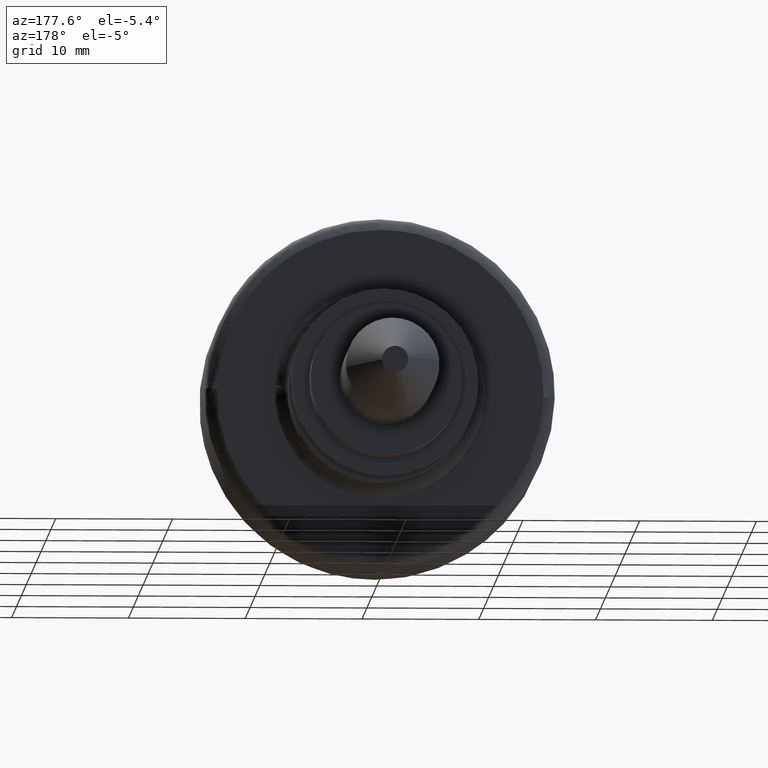
[diagram: clean part render]
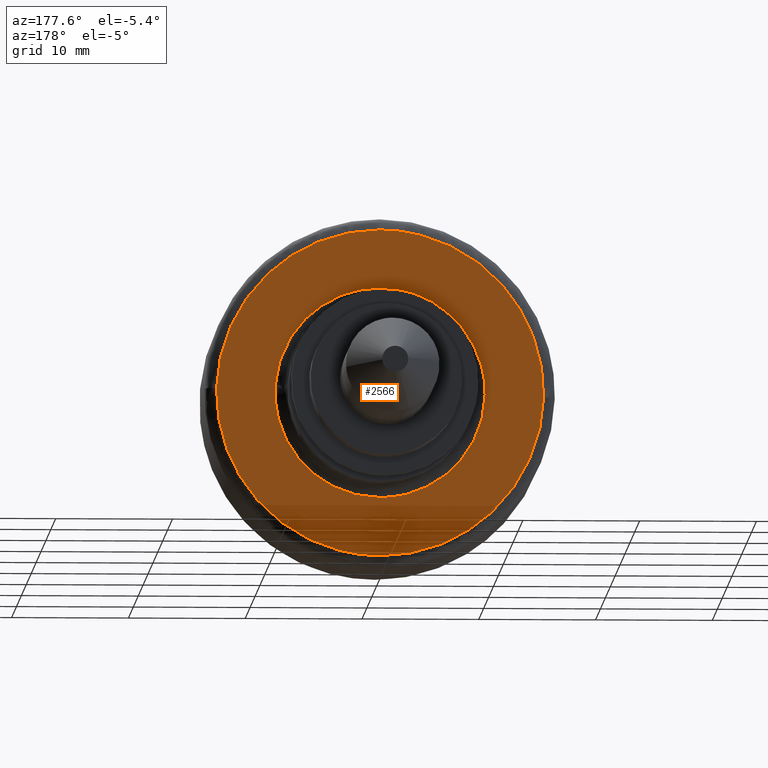
[diagram: same view with one face highlighted and labeled with its STEP entity id]
A machine part, auxiliary view. The second image highlights one B-rep face of the part: STEP entity #2566.
In plain terms, the highlighted face is a freeform B-spline surface patch.
Its self-contained STEP definition (entity closure, byte-faithful):
#2073=CARTESIAN_POINT('',(-3.0,0.0,-9.0));
#2074=VERTEX_POINT('',#2073);
#2075=CARTESIAN_POINT('',(-3.0,-8.978091063795649,0.627599264229287));
#2076=VERTEX_POINT('',#2075);
#2077=CARTESIAN_POINT('',(-3.0,0.0,-9.0));
#2078=CARTESIAN_POINT('',(-3.000000000000000,-9.0,-9.0));
#2079=CARTESIAN_POINT('',(-3.0,-9.0,0.0));
#2080=CARTESIAN_POINT('',(-3.000000000000000,-9.0,0.314182042976286));
#2081=CARTESIAN_POINT('',(-3.000000000000000,-8.978091063795649,0.627599264229287));
#2089=(BOUNDED_CURVE()B_SPLINE_CURVE(2,(#2077,#2078,#2079,#2080,#2081),.UNSPECIFIED.,.F.,.U.)B_SPLINE_CURVE_WITH_KNOTS((3,2,3),(0.0,0.250000000000000,0.262166313468831),.UNSPECIFIED.)CURVE()GEOMETRIC_REPRESENTATION_ITEM()RATIONAL_B_SPLINE_CURVE((1.0,0.707106781186547,1.0,0.985746277148083,0.972879876378680))REPRESENTATION_ITEM(''));
#2090=EDGE_CURVE('',#2074,#2076,#2089,.T.);
#2092=CARTESIAN_POINT('',(-3.0,8.999289397165907,-0.113094359048449));
#2093=VERTEX_POINT('',#2092);
#2094=CARTESIAN_POINT('',(-3.000000000000000,8.999289397165907,-0.113094359048449));
#2095=CARTESIAN_POINT('',(-3.0,8.887607368955143,-9.000000000000002));
#2096=CARTESIAN_POINT('',(-3.0,0.0,-9.0));
#2104=(BOUNDED_CURVE()B_SPLINE_CURVE(2,(#2094,#2095,#2096),.UNSPECIFIED.,.F.,.U.)B_SPLINE_CURVE_WITH_KNOTS((3,3),(0.752215704082441,1.0),.UNSPECIFIED.)CURVE()GEOMETRIC_REPRESENTATION_ITEM()RATIONAL_B_SPLINE_CURVE((0.994854295634418,0.709702639989124,1.0))REPRESENTATION_ITEM(''));
#2105=EDGE_CURVE('',#2093,#2074,#2104,.T.);
#2163=CARTESIAN_POINT('',(-3.0,0.0,9.0));
#2164=VERTEX_POINT('',#2163);
#2165=CARTESIAN_POINT('',(-3.000000000000000,-8.978091063795649,0.627599264229287));
#2166=CARTESIAN_POINT('',(-3.000000000000000,-8.392831625205592,9.0));
#2167=CARTESIAN_POINT('',(-3.0,0.0,9.0));
#2175=(BOUNDED_CURVE()B_SPLINE_CURVE(2,(#2165,#2166,#2167),.UNSPECIFIED.,.F.,.U.)B_SPLINE_CURVE_WITH_KNOTS((3,3),(0.262166313468831,0.500000000000000),.UNSPECIFIED.)CURVE()GEOMETRIC_REPRESENTATION_ITEM()RATIONAL_B_SPLINE_CURVE((0.972879876378679,0.721360504038465,1.0))REPRESENTATION_ITEM(''));
#2176=EDGE_CURVE('',#2076,#2164,#2175,.T.);
#2182=CARTESIAN_POINT('',(-3.0,0.0,9.0));
#2183=CARTESIAN_POINT('',(-3.000000000000000,9.0,9.0));
#2184=CARTESIAN_POINT('',(-3.0,9.0,0.0));
#2185=CARTESIAN_POINT('',(-3.0,9.0,-0.056549412033699));
#2186=CARTESIAN_POINT('',(-3.000000000000000,8.999289397165907,-0.113094359048449));
#2194=(BOUNDED_CURVE()B_SPLINE_CURVE(2,(#2182,#2183,#2184,#2185,#2186),.UNSPECIFIED.,.F.,.U.)B_SPLINE_CURVE_WITH_KNOTS((3,2,3),(0.500000000000000,0.750000000000000,0.752215704082441),.UNSPECIFIED.)CURVE()GEOMETRIC_REPRESENTATION_ITEM()RATIONAL_B_SPLINE_CURVE((1.0,0.707106781186547,1.0,0.997404141197423,0.994854295634416))REPRESENTATION_ITEM(''));
#2195=EDGE_CURVE('',#2164,#2093,#2194,.T.);
#2223=CARTESIAN_POINT('',(-3.0,-13.995578650142591,0.351821336216347));
#2224=VERTEX_POINT('',#2223);
#2225=CARTESIAN_POINT('',(-3.0,0.0,-14.0));
#2226=VERTEX_POINT('',#2225);
#2227=CARTESIAN_POINT('',(-3.0,-13.995578650142592,0.351821336216347));
#2228=CARTESIAN_POINT('',(-3.000000000000000,-14.000000000000002,0.175938449732502));
#2229=CARTESIAN_POINT('',(-3.0,-14.0,0.0));
#2230=CARTESIAN_POINT('',(-3.000000000000000,-13.999999999999998,-13.999999999999998));
#2231=CARTESIAN_POINT('',(-3.0,0.0,-14.0));
#2239=(BOUNDED_CURVE()B_SPLINE_CURVE(2,(#2227,#2228,#2229,#2230,#2231),.UNSPECIFIED.,.F.,.U.)B_SPLINE_CURVE_WITH_KNOTS((3,2,3),(0.745579891769678,0.750000000000000,1.0),.UNSPECIFIED.)CURVE()GEOMETRIC_REPRESENTATION_ITEM()RATIONAL_B_SPLINE_CURVE((0.989826157681283,0.994821521091668,1.0,0.707106781186547,1.0))REPRESENTATION_ITEM(''));
#2240=EDGE_CURVE('',#2224,#2226,#2239,.T.);
#2258=CARTESIAN_POINT('',(-3.0,13.995578650142591,-0.351821336216346));
#2259=VERTEX_POINT('',#2258);
#2273=CARTESIAN_POINT('',(-3.0,0.0,-14.0));
#2274=CARTESIAN_POINT('',(-3.000000000000000,13.652490266518960,-13.999999999999998));
#2275=CARTESIAN_POINT('',(-3.000000000000000,13.995578650142596,-0.351821336216346));
#2283=(BOUNDED_CURVE()B_SPLINE_CURVE(2,(#2273,#2274,#2275),.UNSPECIFIED.,.F.,.U.)B_SPLINE_CURVE_WITH_KNOTS((3,3),(0.0,0.245579891769678),.UNSPECIFIED.)CURVE()GEOMETRIC_REPRESENTATION_ITEM()RATIONAL_B_SPLINE_CURVE((1.0,0.712285260094879,0.989826157681283))REPRESENTATION_ITEM(''));
#2284=EDGE_CURVE('',#2226,#2259,#2283,.T.);
#2312=CARTESIAN_POINT('',(-3.0,0.0,14.0));
#2313=VERTEX_POINT('',#2312);
#2314=CARTESIAN_POINT('',(-3.0,0.0,14.0));
#2315=CARTESIAN_POINT('',(-2.999999999999999,-13.652490266519003,14.0));
#2316=CARTESIAN_POINT('',(-3.000000000000001,-13.995578650142587,0.351821336216347));
#2324=(BOUNDED_CURVE()B_SPLINE_CURVE(2,(#2314,#2315,#2316),.UNSPECIFIED.,.F.,.U.)B_SPLINE_CURVE_WITH_KNOTS((3,3),(0.500000000000000,0.745579891769678),.UNSPECIFIED.)CURVE()GEOMETRIC_REPRESENTATION_ITEM()RATIONAL_B_SPLINE_CURVE((1.0,0.712285260094878,0.989826157681284))REPRESENTATION_ITEM(''));
#2325=EDGE_CURVE('',#2313,#2224,#2324,.T.);
#2327=CARTESIAN_POINT('',(-3.0,13.995578650142592,-0.351821336216346));
#2328=CARTESIAN_POINT('',(-3.000000000000000,14.000000000000002,-0.175938449732502));
#2329=CARTESIAN_POINT('',(-3.0,14.0,0.0));
#2330=CARTESIAN_POINT('',(-3.000000000000000,13.999999999999998,13.999999999999998));
#2331=CARTESIAN_POINT('',(-3.0,0.0,14.0));
#2339=(BOUNDED_CURVE()B_SPLINE_CURVE(2,(#2327,#2328,#2329,#2330,#2331),.UNSPECIFIED.,.F.,.U.)B_SPLINE_CURVE_WITH_KNOTS((3,2,3),(0.245579891769678,0.250000000000000,0.500000000000000),.UNSPECIFIED.)CURVE()GEOMETRIC_REPRESENTATION_ITEM()RATIONAL_B_SPLINE_CURVE((0.989826157681283,0.994821521091668,1.0,0.707106781186547,1.0))REPRESENTATION_ITEM(''));
#2340=EDGE_CURVE('',#2259,#2313,#2339,.T.);
#2549=CARTESIAN_POINT('',(-3.0,-15.393737165800500,-15.398599945730570));
#2550=CARTESIAN_POINT('',(-3.0,15.393737666321400,-15.398599945730570));
#2551=CARTESIAN_POINT('',(-3.0,-15.393737165800500,15.398600696749090));
#2552=CARTESIAN_POINT('',(-3.0,15.393737666321400,15.398600696749090));
#2553=B_SPLINE_SURFACE_WITH_KNOTS('',1,1,((#2549,#2551),(#2550,#2552)),.UNSPECIFIED.,.F.,.F.,.U.,(2,2),(2,2),(0.0,30.787474832121902),(0.0,30.797200642479659),.UNSPECIFIED.);
#2554=ORIENTED_EDGE('',*,*,#2284,.T.);
#2555=ORIENTED_EDGE('',*,*,#2340,.T.);
#2556=ORIENTED_EDGE('',*,*,#2325,.T.);
#2557=ORIENTED_EDGE('',*,*,#2240,.T.);
#2558=EDGE_LOOP('',(#2554,#2555,#2556,#2557));
#2559=FACE_OUTER_BOUND('',#2558,.T.);
#2560=ORIENTED_EDGE('',*,*,#2195,.T.);
#2561=ORIENTED_EDGE('',*,*,#2105,.T.);
#2562=ORIENTED_EDGE('',*,*,#2090,.T.);
#2563=ORIENTED_EDGE('',*,*,#2176,.T.);
#2564=EDGE_LOOP('',(#2560,#2561,#2562,#2563));
#2565=FACE_BOUND('',#2564,.T.);
#2566=ADVANCED_FACE('',(#2559,#2565),#2553,.T.);